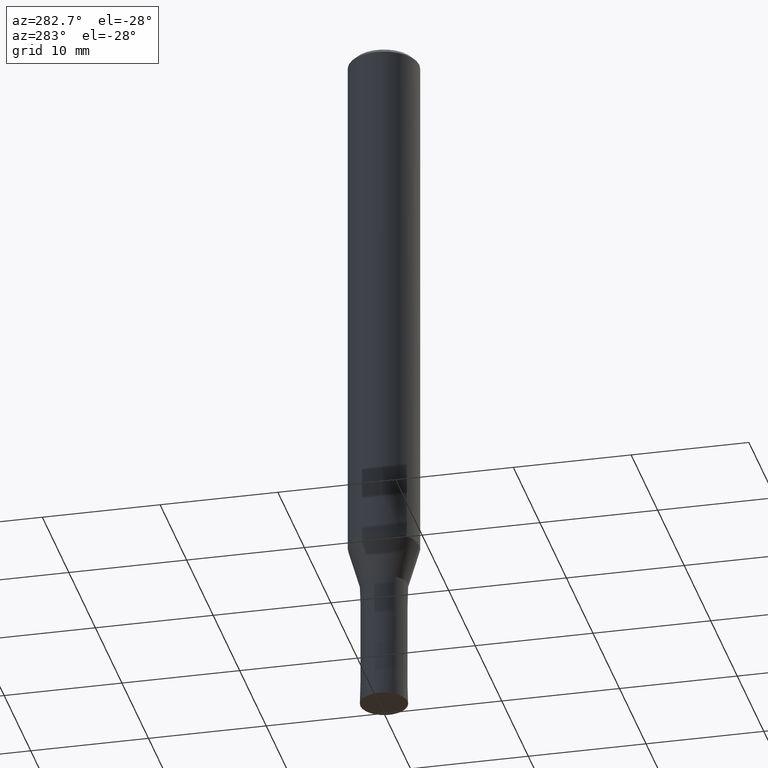
[diagram: clean part render]
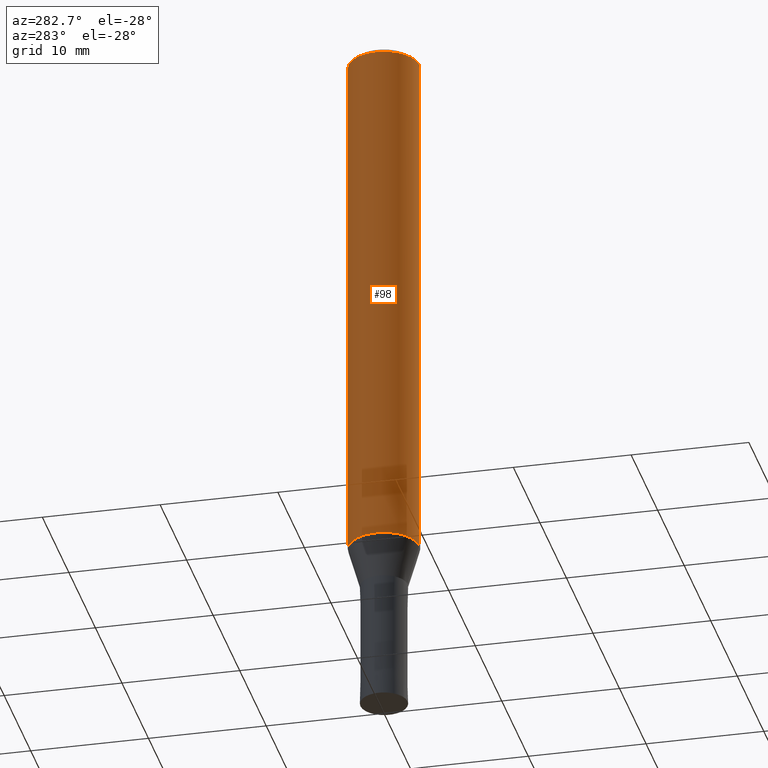
[diagram: same view with one face highlighted and labeled with its STEP entity id]
A machine part, auxiliary view. The second image highlights one B-rep face of the part: STEP entity #98.
In plain terms, the highlighted cylindrical surface (edge-blend (fillet) strip) has radius 3 mm, axis along (-0, -0, 1).
Its self-contained STEP definition (entity closure, byte-faithful):
#98=ADVANCED_FACE('',(#221),#222,.T.);
#116=EDGE_CURVE('',#138,#152,#244,.T.);
#122=VERTEX_POINT('',#250);
#132=EDGE_CURVE('',#162,#122,#261,.T.);
#138=VERTEX_POINT('',#267);
#146=EDGE_CURVE('',#152,#162,#275,.T.);
#152=VERTEX_POINT('',#282);
#162=VERTEX_POINT('',#292);
#170=EDGE_CURVE('',#138,#122,#302,.T.);
#221=FACE_OUTER_BOUND('',#353,.T.);
#222=CYLINDRICAL_SURFACE('',#354,3.0);
#244=LINE('',#380,#381);
#250=CARTESIAN_POINT('',(0.0,3.0,-45.513));
#261=LINE('',#403,#404);
#267=CARTESIAN_POINT('',(3.67381906146713E-016,-3.0,-45.513));
#275=CIRCLE('',#422,3.0);
#282=CARTESIAN_POINT('',(3.67381906146713E-016,-3.0,-0.399999999999999));
#292=CARTESIAN_POINT('',(0.0,3.0,-0.399999999999999));
#302=CIRCLE('',#453,3.0);
#353=EDGE_LOOP('',(#498,#499,#500,#501));
#354=AXIS2_PLACEMENT_3D('',#502,#503,#504);
#380=CARTESIAN_POINT('',(3.67381906146713E-016,-3.0,-22.9565));
#381=VECTOR('',#537,1.0);
#403=CARTESIAN_POINT('',(-3.67381906146713E-016,3.0,-22.9565));
#404=VECTOR('',#558,1.0);
#422=AXIS2_PLACEMENT_3D('',#563,#564,#565);
#453=AXIS2_PLACEMENT_3D('',#592,#593,#594);
#498=ORIENTED_EDGE('',*,*,#132,.T.);
#499=ORIENTED_EDGE('',*,*,#170,.F.);
#500=ORIENTED_EDGE('',*,*,#116,.T.);
#501=ORIENTED_EDGE('',*,*,#146,.T.);
#502=CARTESIAN_POINT('',(0.0,0.0,-22.9565));
#503=DIRECTION('',(-0.0,-0.0,1.0));
#504=DIRECTION('',(0.0,1.0,0.0));
#537=DIRECTION('',(-0.0,-0.0,1.0));
#558=DIRECTION('',(0.0,0.0,-1.0));
#563=CARTESIAN_POINT('',(0.0,0.0,-0.399999999999999));
#564=DIRECTION('',(0.0,0.0,-1.0));
#565=DIRECTION('',(0.0,1.0,0.0));
#592=CARTESIAN_POINT('',(0.0,0.0,-45.513));
#593=DIRECTION('',(0.0,0.0,-1.0));
#594=DIRECTION('',(0.0,1.0,0.0));